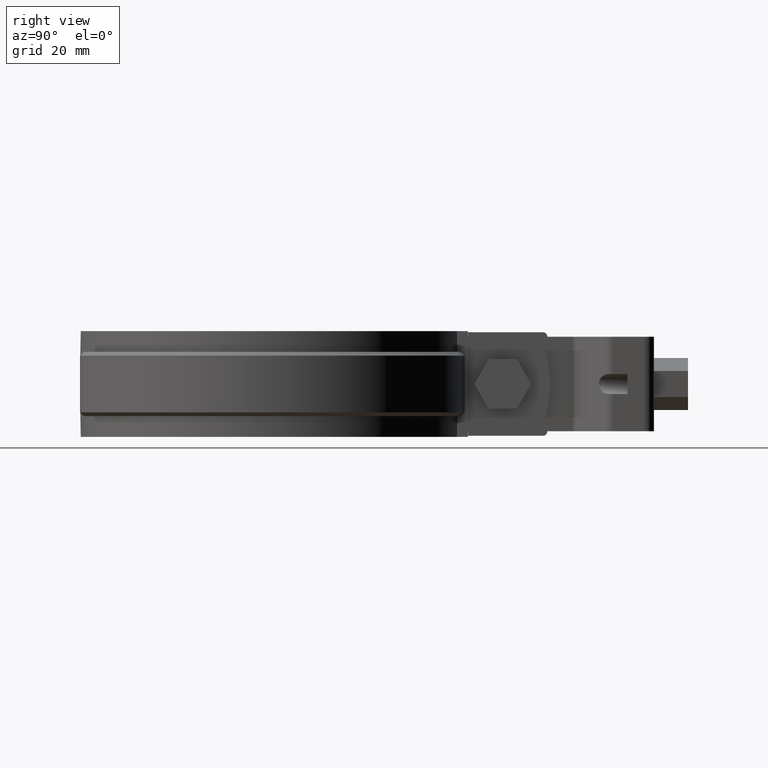
[diagram: clean part render]
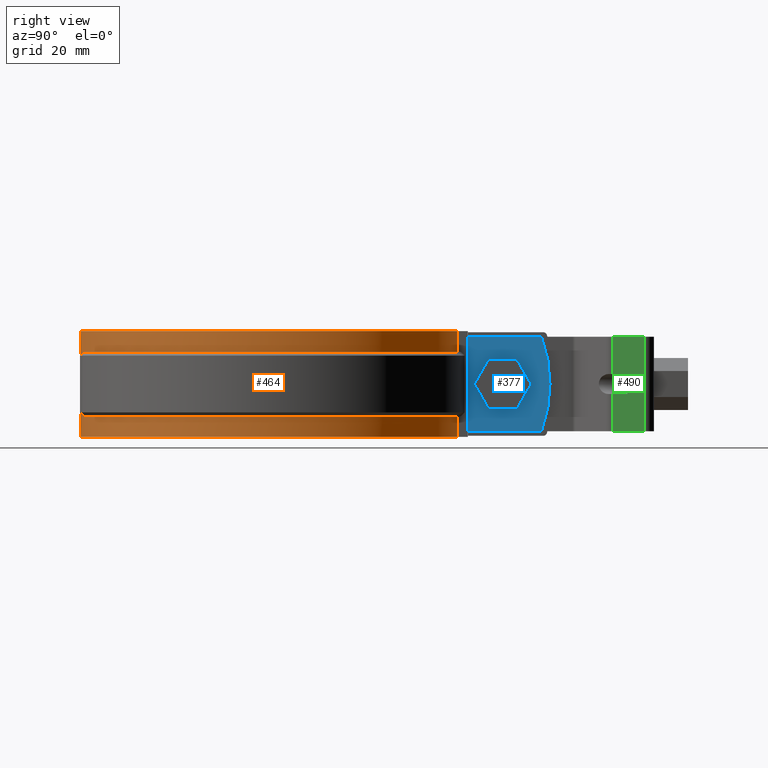
[diagram: same view with three faces highlighted in distinct colors, each labeled with its STEP entity id]
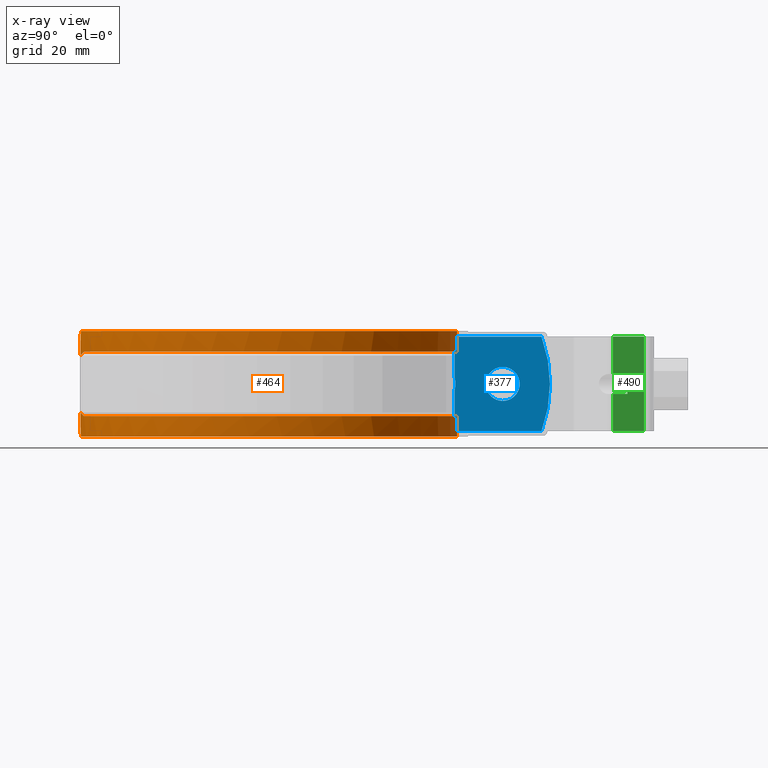
[diagram: x-ray of the same camera — body ghosted, the three highlighted faces saturated]
A machine part, right view with three faces highlighted in distinct colors.
The next image is the same camera in x-ray (body ghosted, the three faces saturated) — at least one of them is partly hidden behind the body in this view.
Their STEP definitions:

[orange] entity #464 — the highlighted cylindrical surface (partial cylindrical patch) has radius 50.05 mm, axis along (0, 0, 1).
#464 = ADVANCED_FACE( '', ( #906 ), #907, .T. );
#906 = FACE_OUTER_BOUND( '', #2100, .T. );
#907 = CYLINDRICAL_SURFACE( '', #2101, 50.0500000000000 );
#2100 = EDGE_LOOP( '', ( #4278, #4279, #4280, #4281, #4282, #4283, #4284, #4285, #4286, #4287, #4288, #4289, #4290, #4291, #4292, #4293 ) );
#2101 = AXIS2_PLACEMENT_3D( '', #4294, #4295, #4296 );
#4278 = ORIENTED_EDGE( '', *, *, #6444, .F. );
#4279 = ORIENTED_EDGE( '', *, *, #6368, .T. );
#4280 = ORIENTED_EDGE( '', *, *, #6465, .T. );
#4281 = ORIENTED_EDGE( '', *, *, #6388, .T. );
#4282 = ORIENTED_EDGE( '', *, *, #6487, .T. );
#4283 = ORIENTED_EDGE( '', *, *, #6379, .T. );
#4284 = ORIENTED_EDGE( '', *, *, #6520, .T. );
#4285 = ORIENTED_EDGE( '', *, *, #6406, .F. );
#4286 = ORIENTED_EDGE( '', *, *, #6517, .T. );
#4287 = ORIENTED_EDGE( '', *, *, #6424, .T. );
#4288 = ORIENTED_EDGE( '', *, *, #6390, .T. );
#4289 = ORIENTED_EDGE( '', *, *, #6518, .T. );
#4290 = ORIENTED_EDGE( '', *, *, #6414, .F. );
#4291 = ORIENTED_EDGE( '', *, *, #6410, .F. );
#4292 = ORIENTED_EDGE( '', *, *, #6521, .F. );
#4293 = ORIENTED_EDGE( '', *, *, #6375, .T. );
#4294 = CARTESIAN_POINT( '', ( -8.67361737988404E-016, 0.000000000000000, -14.0000000000000 ) );
#4295 = DIRECTION( '', ( 0.000000000000000, 0.000000000000000, 1.00000000000000 ) );
#4296 = DIRECTION( '', ( -0.141271445606700, 0.989970897883465, 0.000000000000000 ) );
#6368 = EDGE_CURVE( '', #7410, #7408, #7411, .T. );
#6375 = EDGE_CURVE( '', #7422, #7419, #7423, .F. );
#6379 = EDGE_CURVE( '', #7430, #7428, #7431, .F. );
#6388 = EDGE_CURVE( '', #7445, #7443, #7446, .F. );
#6390 = EDGE_CURVE( '', #7448, #7449, #7450, .T. );
#6406 = EDGE_CURVE( '', #7476, #7478, #7479, .F. );
#6410 = EDGE_CURVE( '', #7484, #7471, #7486, .F. );
#6414 = EDGE_CURVE( '', #7471, #7492, #7493, .T. );
#6424 = EDGE_CURVE( '', #7507, #7448, #7508, .F. );
#6444 = EDGE_CURVE( '', #7410, #7419, #7539, .T. );
#6465 = EDGE_CURVE( '', #7408, #7445, #7576, .F. );
#6487 = EDGE_CURVE( '', #7443, #7430, #7612, .T. );
#6517 = EDGE_CURVE( '', #7476, #7507, #7654, .T. );
#6518 = EDGE_CURVE( '', #7449, #7492, #7655, .T. );
#6520 = EDGE_CURVE( '', #7428, #7478, #7657, .F. );
#6521 = EDGE_CURVE( '', #7422, #7484, #7658, .F. );
#7408 = VERTEX_POINT( '', #10451 );
#7410 = VERTEX_POINT( '', #10454 );
#7411 = ELLIPSE( '', #10455, 70.7813887967734, 50.0500000000000 );
#7419 = VERTEX_POINT( '', #10467 );
#7422 = VERTEX_POINT( '', #10471 );
#7423 = LINE( '', #10472, #10473 );
#7428 = VERTEX_POINT( '', #10480 );
#7430 = VERTEX_POINT( '', #10483 );
#7431 = LINE( '', #10484, #10485 );
#7443 = VERTEX_POINT( '', #10506 );
#7445 = VERTEX_POINT( '', #10509 );
#7446 = ELLIPSE( '', #10510, 70.7813887967734, 50.0500000000000 );
#7448 = VERTEX_POINT( '', #10513 );
#7449 = VERTEX_POINT( '', #10514 );
#7450 = LINE( '', #10515, #10516 );
#7471 = VERTEX_POINT( '', #10549 );
#7476 = VERTEX_POINT( '', #10559 );
#7478 = VERTEX_POINT( '', #10562 );
#7479 = LINE( '', #10563, #10564 );
#7484 = VERTEX_POINT( '', #10571 );
#7486 = LINE( '', #10574, #10575 );
#7492 = VERTEX_POINT( '', #10592 );
#7493 = CIRCLE( '', #10593, 50.0500000000000 );
#7507 = VERTEX_POINT( '', #10612 );
#7508 = ELLIPSE( '', #10613, 70.7813887967734, 50.0500000000000 );
#7539 = CIRCLE( '', #10711, 50.0500000000000 );
#7576 = LINE( '', #10842, #10843 );
#7612 = CIRCLE( '', #10935, 50.0500000000000 );
#7654 = CIRCLE( '', #11046, 50.0500000000000 );
#7655 = ELLIPSE( '', #11047, 70.7813887967734, 50.0500000000000 );
#7657 = CIRCLE( '', #11050, 50.0500000000000 );
#7658 = CIRCLE( '', #11051, 50.0500000000000 );
#10451 = CARTESIAN_POINT( '', ( 2.50000000000000, -49.9875234433554, -7.56247655664465 ) );
#10454 = CARTESIAN_POINT( '', ( 9.95489829179589, -49.0500000000000, -8.50000000000000 ) );
#10455 = AXIS2_PLACEMENT_3D( '', #12730, #12731, #12732 );
#10467 = CARTESIAN_POINT( '', ( 6.00000000000000, 49.6890581516696, -8.50000000000000 ) );
#10471 = CARTESIAN_POINT( '', ( 6.00000000000000, 49.6890581516696, -14.0000000000000 ) );
#10472 = CARTESIAN_POINT( '', ( 6.00000000000000, 49.6890581516696, -14.0000000000000 ) );
#10473 = VECTOR( '', #12741, 1000.00000000000 );
#10480 = CARTESIAN_POINT( '', ( 6.00000000000000, 49.6890581516696, 14.0000000000000 ) );
#10483 = CARTESIAN_POINT( '', ( 6.00000000000000, 49.6890581516696, 8.50000000000000 ) );
#10484 = CARTESIAN_POINT( '', ( 6.00000000000000, 49.6890581516696, -14.0000000000000 ) );
#10485 = VECTOR( '', #12745, 1000.00000000000 );
#10506 = CARTESIAN_POINT( '', ( 9.95489829179589, -49.0500000000000, 8.50000000000000 ) );
#10509 = CARTESIAN_POINT( '', ( 2.50000000000000, -49.9875234433553, 7.56247655664465 ) );
#10510 = AXIS2_PLACEMENT_3D( '', #12756, #12757, #12758 );
#10513 = CARTESIAN_POINT( '', ( -2.50000000000000, -49.9875234433553, 7.56247655664465 ) );
#10514 = CARTESIAN_POINT( '', ( -2.50000000000000, -49.9875234433554, -7.56247655664465 ) );
#10515 = CARTESIAN_POINT( '', ( -2.50000000000000, -49.9875234433553, -14.0000000000000 ) );
#10516 = VECTOR( '', #12760, 1000.00000000000 );
#10549 = CARTESIAN_POINT( '', ( -6.00000000000000, 49.6890581516696, -8.50000000000000 ) );
#10559 = CARTESIAN_POINT( '', ( -6.00000000000000, 49.6890581516696, 8.50000000000000 ) );
#10562 = CARTESIAN_POINT( '', ( -6.00000000000000, 49.6890581516696, 14.0000000000000 ) );
#10563 = CARTESIAN_POINT( '', ( -6.00000000000000, 49.6890581516696, -14.0000000000000 ) );
#10564 = VECTOR( '', #12781, 1000.00000000000 );
#10571 = CARTESIAN_POINT( '', ( -6.00000000000000, 49.6890581516696, -14.0000000000000 ) );
#10574 = CARTESIAN_POINT( '', ( -6.00000000000000, 49.6890581516696, -14.0000000000000 ) );
#10575 = VECTOR( '', #12785, 1000.00000000000 );
#10592 = CARTESIAN_POINT( '', ( -9.95489829179590, -49.0500000000000, -8.50000000000000 ) );
#10593 = AXIS2_PLACEMENT_3D( '', #12788, #12789, #12790 );
#10612 = CARTESIAN_POINT( '', ( -9.95489829179589, -49.0500000000000, 8.50000000000000 ) );
#10613 = AXIS2_PLACEMENT_3D( '', #12808, #12809, #12810 );
#10711 = AXIS2_PLACEMENT_3D( '', #12832, #12833, #12834 );
#10842 = CARTESIAN_POINT( '', ( 2.50000000000000, -49.9875234433553, -14.0000000000000 ) );
#10843 = VECTOR( '', #12846, 1000.00000000000 );
#10935 = AXIS2_PLACEMENT_3D( '', #12868, #12869, #12870 );
#11046 = AXIS2_PLACEMENT_3D( '', #12912, #12913, #12914 );
#11047 = AXIS2_PLACEMENT_3D( '', #12915, #12916, #12917 );
#11050 = AXIS2_PLACEMENT_3D( '', #12919, #12920, #12921 );
#11051 = AXIS2_PLACEMENT_3D( '', #12922, #12923, #12924 );
#12730 = CARTESIAN_POINT( '', ( -8.67361737988404E-016, 0.000000000000000, -57.5499999999999 ) );
#12731 = DIRECTION( '', ( 9.81307786677359E-018, -0.707106781186547, -0.707106781186548 ) );
#12732 = DIRECTION( '', ( -9.81307786677360E-018, 0.707106781186548, -0.707106781186547 ) );
#12741 = DIRECTION( '', ( 0.000000000000000, 0.000000000000000, -1.00000000000000 ) );
#12745 = DIRECTION( '', ( 0.000000000000000, 0.000000000000000, -1.00000000000000 ) );
#12756 = CARTESIAN_POINT( '', ( -8.67361737988404E-016, 0.000000000000000, 57.5499999999999 ) );
#12757 = DIRECTION( '', ( -9.81307786677359E-018, 0.707106781186547, -0.707106781186548 ) );
#12758 = DIRECTION( '', ( 9.81307786677360E-018, -0.707106781186548, -0.707106781186547 ) );
#12760 = DIRECTION( '', ( 0.000000000000000, 0.000000000000000, -1.00000000000000 ) );
#12781 = DIRECTION( '', ( 0.000000000000000, 0.000000000000000, -1.00000000000000 ) );
#12785 = DIRECTION( '', ( 0.000000000000000, 0.000000000000000, -1.00000000000000 ) );
#12788 = CARTESIAN_POINT( '', ( -8.67361737988404E-016, 0.000000000000000, -8.50000000000000 ) );
#12789 = DIRECTION( '', ( 0.000000000000000, 0.000000000000000, 1.00000000000000 ) );
#12790 = DIRECTION( '', ( 1.00000000000000, 0.000000000000000, 0.000000000000000 ) );
#12808 = CARTESIAN_POINT( '', ( -8.67361737988404E-016, 0.000000000000000, 57.5499999999999 ) );
#12809 = DIRECTION( '', ( 9.81307786677359E-018, 0.707106781186547, -0.707106781186548 ) );
#12810 = DIRECTION( '', ( -9.81307786677360E-018, -0.707106781186548, -0.707106781186547 ) );
#12832 = CARTESIAN_POINT( '', ( -8.67361737988404E-016, 0.000000000000000, -8.50000000000000 ) );
#12833 = DIRECTION( '', ( 0.000000000000000, 0.000000000000000, 1.00000000000000 ) );
#12834 = DIRECTION( '', ( 1.00000000000000, 0.000000000000000, 0.000000000000000 ) );
#12846 = DIRECTION( '', ( 0.000000000000000, 0.000000000000000, -1.00000000000000 ) );
#12868 = CARTESIAN_POINT( '', ( -8.67361737988404E-016, 0.000000000000000, 8.50000000000000 ) );
#12869 = DIRECTION( '', ( 0.000000000000000, 0.000000000000000, 1.00000000000000 ) );
#12870 = DIRECTION( '', ( 1.00000000000000, 0.000000000000000, 0.000000000000000 ) );
#12912 = CARTESIAN_POINT( '', ( -8.67361737988404E-016, 0.000000000000000, 8.50000000000000 ) );
#12913 = DIRECTION( '', ( 0.000000000000000, 0.000000000000000, 1.00000000000000 ) );
#12914 = DIRECTION( '', ( 1.00000000000000, 0.000000000000000, 0.000000000000000 ) );
#12915 = CARTESIAN_POINT( '', ( -8.67361737988404E-016, 0.000000000000000, -57.5499999999999 ) );
#12916 = DIRECTION( '', ( -9.81307786677359E-018, -0.707106781186547, -0.707106781186548 ) );
#12917 = DIRECTION( '', ( 9.81307786677360E-018, 0.707106781186548, -0.707106781186547 ) );
#12919 = CARTESIAN_POINT( '', ( -8.67361737988404E-016, 0.000000000000000, 14.0000000000000 ) );
#12920 = DIRECTION( '', ( 0.000000000000000, 0.000000000000000, 1.00000000000000 ) );
#12921 = DIRECTION( '', ( 1.00000000000000, 0.000000000000000, 0.000000000000000 ) );
#12922 = CARTESIAN_POINT( '', ( -8.67361737988404E-016, 0.000000000000000, -14.0000000000000 ) );
#12923 = DIRECTION( '', ( 0.000000000000000, 0.000000000000000, 1.00000000000000 ) );
#12924 = DIRECTION( '', ( 1.00000000000000, 0.000000000000000, 0.000000000000000 ) );

[blue] entity #377 — the highlighted planar face has unit normal (1, 0, 0).
#377 = ADVANCED_FACE( '', ( #724, #725 ), #726, .T. );
#724 = FACE_OUTER_BOUND( '', #1481, .T. );
#725 = FACE_BOUND( '', #1482, .T. );
#726 = PLANE( '', #1483 );
#1481 = EDGE_LOOP( '', ( #3005, #3006, #3007, #3008, #3009, #3010 ) );
#1482 = EDGE_LOOP( '', ( #3011 ) );
#1483 = AXIS2_PLACEMENT_3D( '', #3012, #3013, #3014 );
#3005 = ORIENTED_EDGE( '', *, *, #6271, .F. );
#3006 = ORIENTED_EDGE( '', *, *, #6255, .F. );
#3007 = ORIENTED_EDGE( '', *, *, #6272, .T. );
#3008 = ORIENTED_EDGE( '', *, *, #6270, .T. );
#3009 = ORIENTED_EDGE( '', *, *, #6204, .F. );
#3010 = ORIENTED_EDGE( '', *, *, #6273, .F. );
#3011 = ORIENTED_EDGE( '', *, *, #6274, .T. );
#3012 = CARTESIAN_POINT( '', ( 5.00000000000000, 49.0530580086502, -12.5000000000000 ) );
#3013 = DIRECTION( '', ( 1.00000000000000, 2.34067589742701E-049, 3.79805155346016E-033 ) );
#3014 = DIRECTION( '', ( 0.000000000000000, 1.00000000000000, -6.16283340149655E-017 ) );
#6204 = EDGE_CURVE( '', #7124, #7126, #7127, .F. );
#6255 = EDGE_CURVE( '', #7219, #7217, #7221, .T. );
#6270 = EDGE_CURVE( '', #7243, #7126, #7245, .T. );
#6271 = EDGE_CURVE( '', #7217, #7246, #7247, .T. );
#6272 = EDGE_CURVE( '', #7219, #7243, #7248, .T. );
#6273 = EDGE_CURVE( '', #7246, #7124, #7249, .T. );
#6274 = EDGE_CURVE( '', #7250, #7250, #7251, .F. );
#7124 = VERTEX_POINT( '', #8647 );
#7126 = VERTEX_POINT( '', #8649 );
#7127 = LINE( '', #8650, #8651 );
#7217 = VERTEX_POINT( '', #9210 );
#7219 = VERTEX_POINT( '', #9227 );
#7221 = LINE( '', #9229, #9230 );
#7243 = VERTEX_POINT( '', #9298 );
#7245 = CIRCLE( '', #9301, 36.0000000000000 );
#7246 = VERTEX_POINT( '', #9302 );
#7247 = B_SPLINE_CURVE_WITH_KNOTS( '', 3, ( #9303, #9304, #9305, #9306, #9307, #9308, #9309, #9310 ), .UNSPECIFIED., .F., .F., ( 4, 2, 2, 4 ), ( 2.16840434497101E-019, 0.00168369248448244, 0.00252553872672366, 0.00336738496896489 ), .UNSPECIFIED. );
#7248 = LINE( '', #9311, #9312 );
#7249 = LINE( '', #9313, #9314 );
#7250 = VERTEX_POINT( '', #9315 );
#7251 = CIRCLE( '', #9316, 4.50000000000000 );
#8647 = CARTESIAN_POINT( '', ( 5.00000000000000, 49.0530580086502, 12.5000000000000 ) );
#8649 = CARTESIAN_POINT( '', ( 5.00000000000000, 72.0465717536132, 12.5000000000000 ) );
#8650 = CARTESIAN_POINT( '', ( 5.00000000000000, 49.0530580086502, 12.5000000000000 ) );
#8651 = VECTOR( '', #12551, 1000.00000000000 );
#9210 = CARTESIAN_POINT( '', ( 4.99999999999999, 49.0530580086502, -1.67210469196750 ) );
#9227 = CARTESIAN_POINT( '', ( 5.00000000000000, 49.0530580086502, -12.5000000000000 ) );
#9229 = CARTESIAN_POINT( '', ( 5.00000000000000, 49.0530580086502, -12.5000000000000 ) );
#9230 = VECTOR( '', #12609, 1000.00000000000 );
#9298 = CARTESIAN_POINT( '', ( 5.00000000000000, 72.0465717536132, -12.5000000000000 ) );
#9301 = AXIS2_PLACEMENT_3D( '', #12628, #12629, #12630 );
#9302 = CARTESIAN_POINT( '', ( 5.00000000000000, 49.0530580086502, 1.67210469196951 ) );
#9303 = CARTESIAN_POINT( '', ( 4.99999999999999, 49.0530580086502, -1.67210469196750 ) );
#9304 = CARTESIAN_POINT( '', ( 5.00000000000000, 49.2132706009072, -1.12597755052289 ) );
#9305 = CARTESIAN_POINT( '', ( 4.99999999999999, 49.2954065745053, -0.570560776815831 ) );
#9306 = CARTESIAN_POINT( '', ( 4.99999999999999, 49.2962121759444, 0.277127459909966 ) );
#9307 = CARTESIAN_POINT( '', ( 5.00000000000001, 49.2752645961910, 0.562483787800154 ) );
#9308 = CARTESIAN_POINT( '', ( 5.00000000000000, 49.1937060211499, 1.12236178021089 ) );
#9309 = CARTESIAN_POINT( '', ( 4.99999999999995, 49.1332006194174, 1.39891733316318 ) );
#9310 = CARTESIAN_POINT( '', ( 4.99999999999995, 49.0530580086502, 1.67210469196941 ) );
#9311 = CARTESIAN_POINT( '', ( 5.00000000000000, 49.0530580086502, -12.5000000000000 ) );
#9312 = VECTOR( '', #12631, 1000.00000000000 );
#9313 = CARTESIAN_POINT( '', ( 5.00000000000000, 49.0530580086502, -12.5000000000000 ) );
#9314 = VECTOR( '', #12632, 1000.00000000000 );
#9315 = CARTESIAN_POINT( '', ( 5.00000000000000, 61.7863881048236, -4.50000000000000 ) );
#9316 = AXIS2_PLACEMENT_3D( '', #12633, #12634, #12635 );
#12551 = DIRECTION( '', ( 2.34067589742701E-049, -1.00000000000000, 0.000000000000000 ) );
#12609 = DIRECTION( '', ( 0.000000000000000, 0.000000000000000, 1.00000000000000 ) );
#12628 = CARTESIAN_POINT( '', ( 5.00000000000000, 38.2863881048236, -1.69812188403562E-030 ) );
#12629 = DIRECTION( '', ( 1.00000000000000, 2.34067589742701E-049, 3.79805155346016E-033 ) );
#12630 = DIRECTION( '', ( 3.79805155346016E-033, 0.000000000000000, -1.00000000000000 ) );
#12631 = DIRECTION( '', ( -2.34067589742701E-049, 1.00000000000000, 0.000000000000000 ) );
#12632 = DIRECTION( '', ( 0.000000000000000, 0.000000000000000, 1.00000000000000 ) );
#12633 = CARTESIAN_POINT( '', ( 5.00000000000000, 61.7863881048236, -1.73472347597681E-015 ) );
#12634 = DIRECTION( '', ( 1.00000000000000, 2.34067589742701E-049, 3.79805155346016E-033 ) );
#12635 = DIRECTION( '', ( 3.79805155346016E-033, 0.000000000000000, -1.00000000000000 ) );

[green] entity #490 — the highlighted planar face has unit normal (1, 0, 0).
#490 = ADVANCED_FACE( '', ( #960 ), #961, .T. );
#960 = FACE_OUTER_BOUND( '', #2231, .T. );
#961 = PLANE( '', #2232 );
#2231 = EDGE_LOOP( '', ( #4555, #4556, #4557, #4558, #4559, #4560, #4561, #4562 ) );
#2232 = AXIS2_PLACEMENT_3D( '', #4563, #4564, #4565 );
#4555 = ORIENTED_EDGE( '', *, *, #6614, .T. );
#4556 = ORIENTED_EDGE( '', *, *, #6587, .T. );
#4557 = ORIENTED_EDGE( '', *, *, #6615, .F. );
#4558 = ORIENTED_EDGE( '', *, *, #6556, .F. );
#4559 = ORIENTED_EDGE( '', *, *, #6612, .T. );
#4560 = ORIENTED_EDGE( '', *, *, #6610, .T. );
#4561 = ORIENTED_EDGE( '', *, *, #6616, .F. );
#4562 = ORIENTED_EDGE( '', *, *, #6606, .F. );
#4563 = CARTESIAN_POINT( '', ( 12.2499999998902, 90.8921939001375, 12.4999999938836 ) );
#4564 = DIRECTION( '', ( 1.00000000000000, 5.55390739999730E-025, 4.83999649734249E-013 ) );
#4565 = DIRECTION( '', ( 0.000000000000000, 1.00000000000000, -1.14750235936055E-012 ) );
#6556 = EDGE_CURVE( '', #7714, #7716, #7717, .F. );
#6587 = EDGE_CURVE( '', #7777, #7775, #7778, .T. );
#6606 = EDGE_CURVE( '', #7811, #7813, #7814, .F. );
#6610 = EDGE_CURVE( '', #7821, #7819, #7822, .F. );
#6612 = EDGE_CURVE( '', #7714, #7821, #7824, .T. );
#6614 = EDGE_CURVE( '', #7811, #7777, #7826, .T. );
#6615 = EDGE_CURVE( '', #7716, #7775, #7827, .T. );
#6616 = EDGE_CURVE( '', #7813, #7819, #7828, .F. );
#7714 = VERTEX_POINT( '', #11126 );
#7716 = VERTEX_POINT( '', #11128 );
#7717 = LINE( '', #11129, #11130 );
#7775 = VERTEX_POINT( '', #11214 );
#7777 = VERTEX_POINT( '', #11216 );
#7778 = LINE( '', #11217, #11218 );
#7811 = VERTEX_POINT( '', #11259 );
#7813 = VERTEX_POINT( '', #11270 );
#7814 = LINE( '', #11271, #11272 );
#7819 = VERTEX_POINT( '', #11277 );
#7821 = VERTEX_POINT( '', #11279 );
#7822 = LINE( '', #11280, #11281 );
#7824 = LINE( '', #11290, #11291 );
#7826 = LINE( '', #11294, #11295 );
#7827 = LINE( '', #11296, #11297 );
#7828 = LINE( '', #11298, #11299 );
#11126 = CARTESIAN_POINT( '', ( 12.2499999998902, 90.8921939001360, 12.4999999938836 ) );
#11128 = CARTESIAN_POINT( '', ( 12.2499999998855, 99.1963881010219, 12.4999999934918 ) );
#11129 = CARTESIAN_POINT( '', ( 12.2499999998902, 99.1963881009979, 12.4999999934918 ) );
#11130 = VECTOR( '', #12989, 1000.00000000000 );
#11214 = CARTESIAN_POINT( '', ( 12.2499999998975, 99.1963880998424, -12.5000000065082 ) );
#11216 = CARTESIAN_POINT( '', ( 12.2499999999023, 90.8921938989565, -12.5000000061164 ) );
#11217 = CARTESIAN_POINT( '', ( 12.2499999999023, 90.8921938989580, -12.5000000061164 ) );
#11218 = VECTOR( '', #13042, 1000.00000000000 );
#11259 = CARTESIAN_POINT( '', ( 12.2499999998958, 90.8921938994227, -2.65000000611633 ) );
#11270 = CARTESIAN_POINT( '', ( 12.2499999998918, 94.7963881003086, -2.65000000630053 ) );
#11271 = CARTESIAN_POINT( '', ( 12.2499999998975, 84.7963881003083, -2.65000000582872 ) );
#11272 = VECTOR( '', #13078, 1000.00000000000 );
#11277 = CARTESIAN_POINT( '', ( 12.2499999998892, 94.7963881005586, 2.64999999369941 ) );
#11279 = CARTESIAN_POINT( '', ( 12.2499999998915, 90.8921938996727, 2.64999999388361 ) );
#11280 = CARTESIAN_POINT( '', ( 12.2499999998950, 84.7963881005583, 2.64999999417122 ) );
#11281 = VECTOR( '', #13088, 1000.00000000000 );
#11290 = CARTESIAN_POINT( '', ( 12.2499999998902, 90.8921939001375, 12.4999999938836 ) );
#11291 = VECTOR( '', #13089, 1000.00000000000 );
#11294 = CARTESIAN_POINT( '', ( 12.2499999998902, 90.8921939001375, 12.4999999938836 ) );
#11295 = VECTOR( '', #13091, 1000.00000000000 );
#11296 = CARTESIAN_POINT( '', ( 12.2499999998807, 99.1963881010234, 12.4999999934918 ) );
#11297 = VECTOR( '', #13092, 1000.00000000000 );
#11298 = CARTESIAN_POINT( '', ( 12.2499999998963, 94.7963881004336, -6.30057117589899E-009 ) );
#11299 = VECTOR( '', #13093, 1000.00000000000 );
#12989 = DIRECTION( '', ( -2.22801877046362E-023, -1.00000000000000, 4.71809813440451E-011 ) );
#13042 = DIRECTION( '', ( 2.22801877046362E-023, 1.00000000000000, -4.71809813440451E-011 ) );
#13078 = DIRECTION( '', ( 1.14750235933772E-012, -1.00000000000000, 4.71809813440457E-011 ) );
#13088 = DIRECTION( '', ( 1.14750235933772E-012, -1.00000000000000, 4.71809813440457E-011 ) );
#13089 = DIRECTION( '', ( 4.83999649787072E-013, -4.71809813440451E-011, -1.00000000000000 ) );
#13091 = DIRECTION( '', ( 4.83999649787072E-013, -4.71809813440451E-011, -1.00000000000000 ) );
#13092 = DIRECTION( '', ( 4.83999649787072E-013, -4.71809813440451E-011, -1.00000000000000 ) );
#13093 = DIRECTION( '', ( 4.83999649734249E-013, -4.71809813440443E-011, -1.00000000000000 ) );